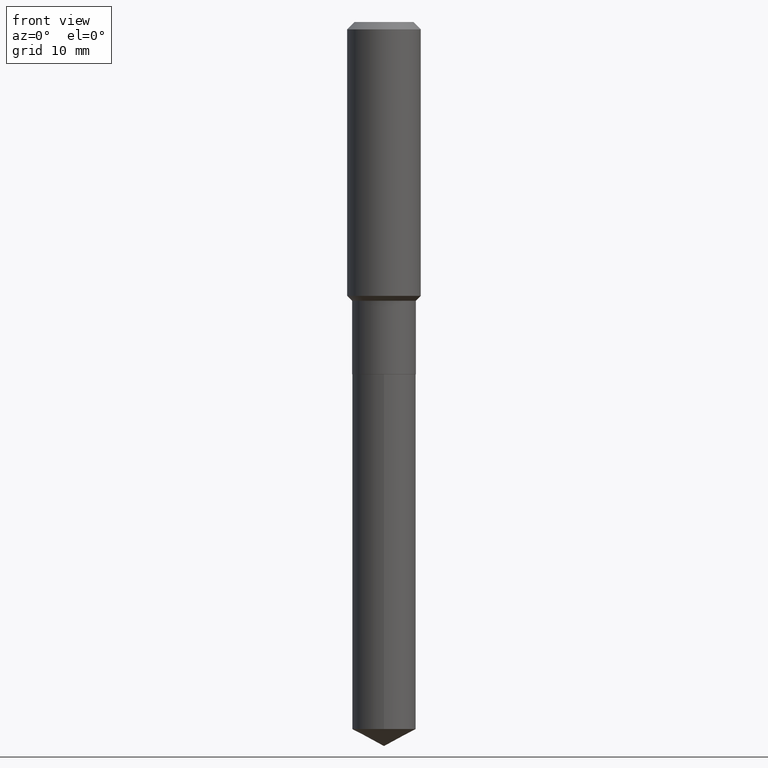
[diagram: clean part render]
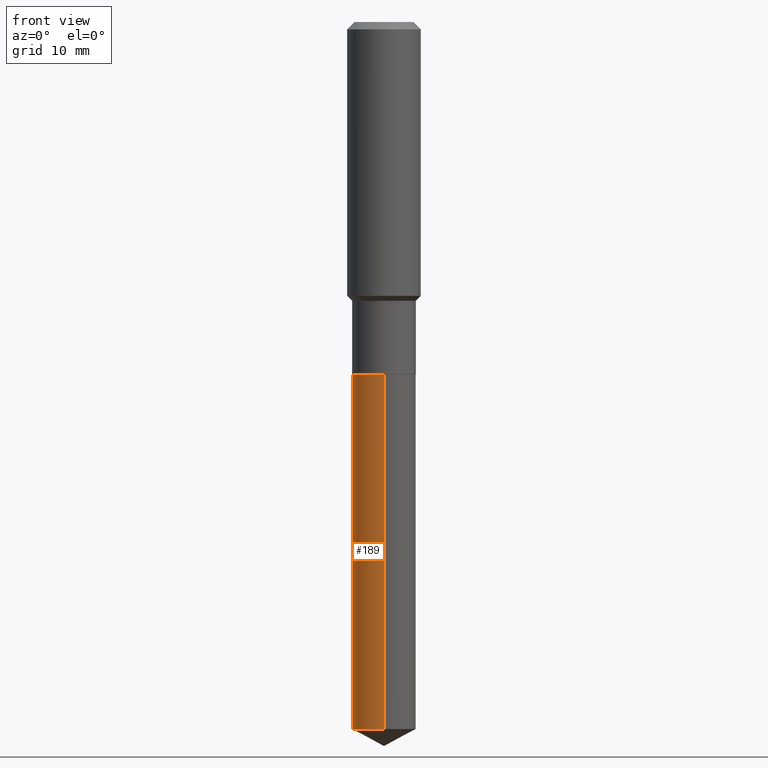
[diagram: same view with one face highlighted and labeled with its STEP entity id]
A machine part, front view. The second image highlights one B-rep face of the part: STEP entity #189.
In plain terms, the highlighted cylindrical surface (edge-blend (fillet) strip) has radius 5.2006 mm, axis along (-0, 0, 1).
Its self-contained STEP definition (entity closure, byte-faithful):
#12 = DIRECTION ( 'NONE',  ( -2.445449978833330651E-29, 3.491508300682517841E-15, 1.000000000000000000 ) ) ;
#20 = EDGE_CURVE ( 'NONE', #132, #204, #367, .T. ) ;
#43 = CARTESIAN_POINT ( 'NONE',  ( 1.454836251468860065E-15, 0.2047499999999921050, -2.259900000000000020 ) ) ;
#45 = VERTEX_POINT ( 'NONE', #109 ) ;
#100 = DIRECTION ( 'NONE',  ( -2.445449978833330651E-29, 3.491508300682517446E-15, 1.000000000000000000 ) ) ;
#102 = CARTESIAN_POINT ( 'NONE',  ( 1.454836251468915680E-15, 0.2047499999999841391, -4.536832493867312799 ) ) ;
#109 = CARTESIAN_POINT ( 'NONE',  ( 1.454836251468916272E-15, 0.2047499999999921050, -2.259900000000000020 ) ) ;
#110 = VERTEX_POINT ( 'NONE', #102 ) ;
#118 = ORIENTED_EDGE ( 'NONE', *, *, #185, .F. ) ;
#126 = DIRECTION ( 'NONE',  ( -6.982962677686265922E-15, -1.000000000000000000, 4.002707683024561674E-15 ) ) ;
#132 = VERTEX_POINT ( 'NONE', #250 ) ;
#152 = AXIS2_PLACEMENT_3D ( 'NONE', #156, #465, #382 ) ;
#156 = CARTESIAN_POINT ( 'NONE',  ( 5.526514955097788983E-29, -7.890398677651621852E-15, -2.259899999999999132 ) ) ;
#173 = VECTOR ( 'NONE', #292, 39.37007874015748143 ) ;
#176 = LINE ( 'NONE', #43, #329 ) ;
#182 = CIRCLE ( 'NONE', #299, 0.2047499999999999876 ) ;
#185 = EDGE_CURVE ( 'NONE', #45, #204, #182, .T. ) ;
#189 = ADVANCED_FACE ( 'NONE', ( #306 ), #260, .T. ) ;
#193 = ORIENTED_EDGE ( 'NONE', *, *, #209, .T. ) ;
#204 = VERTEX_POINT ( 'NONE', #484 ) ;
#209 = EDGE_CURVE ( 'NONE', #110, #132, #412, .T. ) ;
#224 = CARTESIAN_POINT ( 'NONE',  ( 5.526514955097788983E-29, -7.890398677651621852E-15, -2.259899999999999132 ) ) ;
#241 = ORIENTED_EDGE ( 'NONE', *, *, #20, .T. ) ;
#250 = CARTESIAN_POINT ( 'NONE',  ( -1.429761608256151864E-15, -0.2047500000000158360, -4.536832493867311911 ) ) ;
#252 = AXIS2_PLACEMENT_3D ( 'NONE', #343, #12, #468 ) ;
#260 = CYLINDRICAL_SURFACE ( 'NONE', #152, 0.2047499999999999876 ) ;
#292 = DIRECTION ( 'NONE',  ( -2.445449978833330651E-29, 3.491508300682517446E-15, 1.000000000000000000 ) ) ;
#299 = AXIS2_PLACEMENT_3D ( 'NONE', #224, #421, #126 ) ;
#306 = FACE_OUTER_BOUND ( 'NONE', #389, .T. ) ;
#329 = VECTOR ( 'NONE', #100, 39.37007874015748143 ) ;
#331 = CARTESIAN_POINT ( 'NONE',  ( -1.429761608256207479E-15, -0.2047500000000078701, -2.259899999999998688 ) ) ;
#343 = CARTESIAN_POINT ( 'NONE',  ( 1.109463947403053403E-28, -1.584032738008309195E-14, -4.536832493867312799 ) ) ;
#367 = LINE ( 'NONE', #331, #173 ) ;
#382 = DIRECTION ( 'NONE',  ( -6.982962677686265922E-15, -1.000000000000000000, 4.002707683024561674E-15 ) ) ;
#385 = ORIENTED_EDGE ( 'NONE', *, *, #451, .F. ) ;
#389 = EDGE_LOOP ( 'NONE', ( #385, #193, #241, #118 ) ) ;
#412 = CIRCLE ( 'NONE', #252, 0.2047499999999999876 ) ;
#421 = DIRECTION ( 'NONE',  ( -2.445449978833330651E-29, 3.491508300682517841E-15, 1.000000000000000000 ) ) ;
#451 = EDGE_CURVE ( 'NONE', #110, #45, #176, .T. ) ;
#465 = DIRECTION ( 'NONE',  ( -2.445449978833330651E-29, 3.491508300682517841E-15, 1.000000000000000000 ) ) ;
#468 = DIRECTION ( 'NONE',  ( -6.982962677686265922E-15, -1.000000000000000000, 2.668471788683041116E-15 ) ) ;
#484 = CARTESIAN_POINT ( 'NONE',  ( -1.429761608256207479E-15, -0.2047500000000078701, -2.259899999999998688 ) ) ;